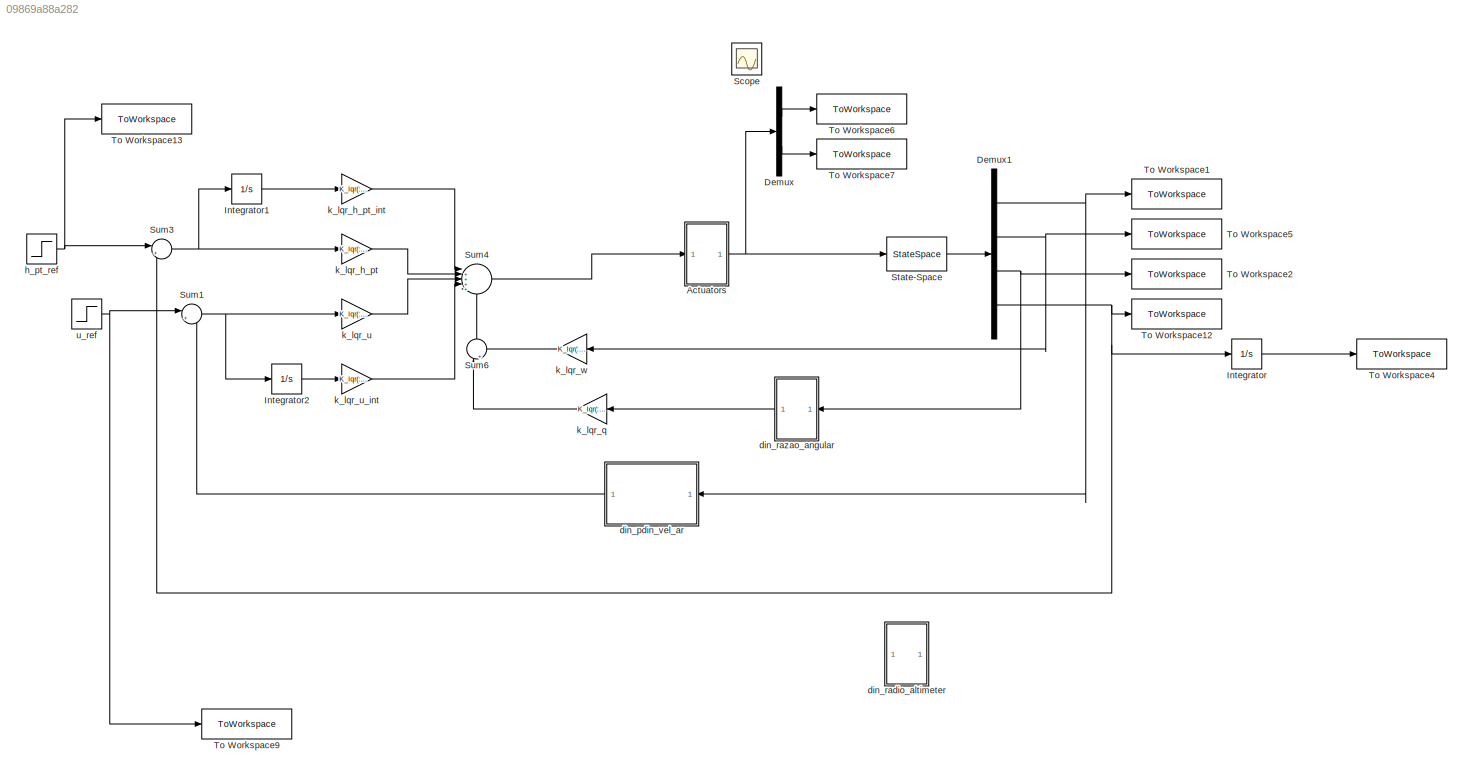
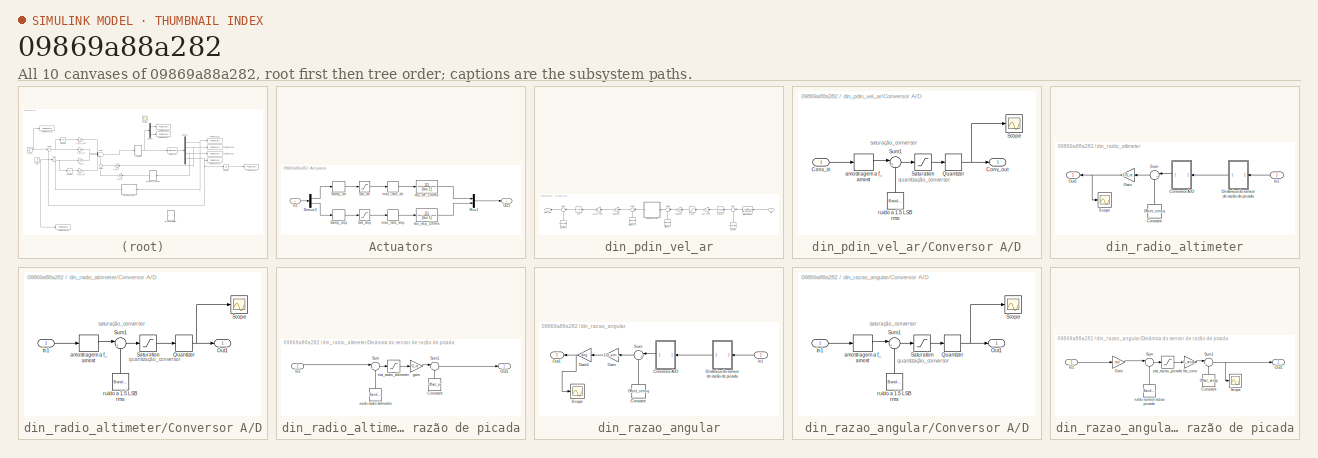
[diagram: thumbnail index - all 10 canvases of the model, root first then tree order]
MODEL slx_09869a88a282
KIND model
CONFIG AbsTol = auto
CONFIG EnableMultiTasking = off
CONFIG FixedStep = auto
CONFIG MaxStep = auto
CONFIG MinStep = auto
CONFIG RelTol = 1e-3
CONFIG SampleTimeConstraint = Unconstrained
CONFIG SolverName = VariableStepAuto
CONFIG StartTime = 0.0
CONFIG StopTime = 100
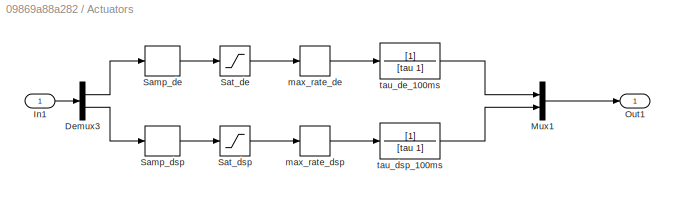
BLOCK [SubSystem] Actuators
  Ports = [1, 1]
  RequestExecContextInheritance = off
BLOCK [RateLimiter] Actuators/ max_rate_de
  FallingSlewLimit = -vel_max_at*deg
  RisingSlewLimit = vel_max_at*deg
  SampleTimeMode = inherited
BLOCK [RateLimiter] Actuators/ max_rate_dsp
  FallingSlewLimit = -vel_max_at*deg
  RisingSlewLimit = vel_max_at*deg
  SampleTimeMode = inherited
BLOCK [Demux] Actuators/Demux3
  Outputs = 2
  Ports = [1, 2]
BLOCK [Inport] Actuators/In1
BLOCK [Mux] Actuators/Mux1
  DisplayOption = bar
  Inputs = 2
  Ports = [2, 1]
BLOCK [Outport] Actuators/Out1
BLOCK [ZeroOrderHold] Actuators/Samp_de
  SampleTime = 1/f_amost
BLOCK [ZeroOrderHold] Actuators/Samp_dsp
  SampleTime = 1/f_amost
BLOCK [Saturate] Actuators/Sat_de
  LowerLimit = max_deflec.demin
  UpperLimit = max_deflec.demax
BLOCK [Saturate] Actuators/Sat_dsp
  LowerLimit = 0
  UpperLimit = max_deflec.spmax
BLOCK [TransferFcn] Actuators/tau_de_100ms
  Denominator = [tau 1]
BLOCK [TransferFcn] Actuators/tau_dsp_100ms
  Denominator = [tau 1]
BLOCK [Demux] Demux
  Outputs = 2
  Ports = [1, 2]
BLOCK [Demux] Demux1
  Ports = [1, 4]
BLOCK [Integrator] Integrator
  Ports = [1, 1]
BLOCK [Integrator] Integrator1
  Ports = [1, 1]
BLOCK [Integrator] Integrator2
  Ports = [1, 1]
BLOCK [Scope] Scope
  Floating = off
  IOType = viewer
  NumInputPorts = 1
  Ports = []
  ScopeSpecificationString = Simulink.scopes.TimeScopeBlockCfg('CurrentConfiguration', extmgr.ConfigurationSet(extmgr.Configuration('Core','General UI',true),extmgr.Configuration('Core','Source UI',true),extmgr.Configuration('Sources','WiredSimulink',true),extmgr.Configuration('Visuals','Time Domain',true,'SerializedDisplays',{struct('MinYLimReal','-0.44858','MaxYLimReal','2.42899','YLabelReal','','MinYLimMag','0.00000','MaxY...<+1359ch>
BLOCK [StateSpace] State-Space
  A = a_h_pt
  B = b_h_pt
  C = c_h_pt
  D = d_h_pt
  InitialCondition = x0
  Ports = [1, 1]
BLOCK [Sum] Sum1
  Inputs = |+-
  Ports = [2, 1]
BLOCK [Sum] Sum3
  Inputs = |+-
  Ports = [2, 1]
BLOCK [Sum] Sum4
  Inputs = |++++-
  Ports = [5, 1]
BLOCK [Sum] Sum6
  Inputs = |++
  NameLocation = right
  Ports = [2, 1]
BLOCK [ToWorkspace] To Workspace1
  FixptAsFi = on
  MaxDataPoints = inf
  Ports = [1]
  SampleTime = -1
  VariableName = u
BLOCK [ToWorkspace] To Workspace12
  FixptAsFi = on
  MaxDataPoints = inf
  Ports = [1]
  SampleTime = -1
  VariableName = h_pt
BLOCK [ToWorkspace] To Workspace13
  FixptAsFi = on
  MaxDataPoints = inf
  Ports = [1]
  SampleTime = -1
  VariableName = h_pt_ref
BLOCK [ToWorkspace] To Workspace2
  FixptAsFi = on
  MaxDataPoints = inf
  Ports = [1]
  SampleTime = -1
  VariableName = q
BLOCK [ToWorkspace] To Workspace4
  FixptAsFi = on
  MaxDataPoints = inf
  Ports = [1]
  SampleTime = -1
  VariableName = h
BLOCK [ToWorkspace] To Workspace5
  FixptAsFi = on
  MaxDataPoints = inf
  Ports = [1]
  SampleTime = -1
  VariableName = w
BLOCK [ToWorkspace] To Workspace6
  FixptAsFi = on
  MaxDataPoints = inf
  Ports = [1]
  SampleTime = -1
  SaveFormat = Structure With Time
  VariableName = de
BLOCK [ToWorkspace] To Workspace7
  FixptAsFi = on
  MaxDataPoints = inf
  Ports = [1]
  SampleTime = -1
  SaveFormat = Structure With Time
  VariableName = dsp
BLOCK [ToWorkspace] To Workspace9
  FixptAsFi = on
  MaxDataPoints = inf
  Ports = [1]
  SampleTime = -1
  VariableName = u_ref
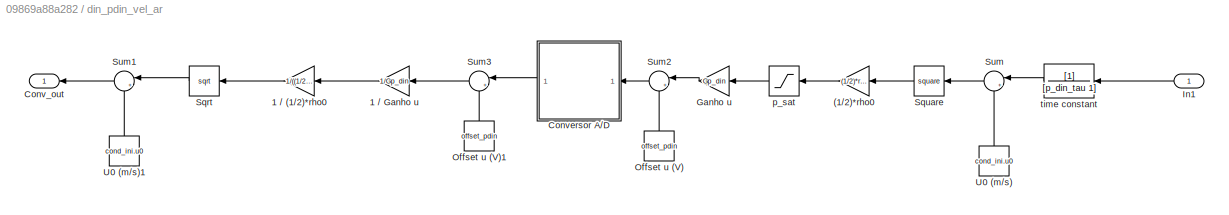
BLOCK [SubSystem] din_pdin_vel_ar
  NameLocation = top
  Ports = [1, 1]
  RequestExecContextInheritance = off
BLOCK [TransferFcn] din_pdin_vel_ar/ time constant
  Denominator = [p_din_tau 1]
  NameLocation = top
BLOCK [Gain] din_pdin_vel_ar/(1//2)*rho0
  Gain = (1/2)*rho0
  NameLocation = top
BLOCK [Gain] din_pdin_vel_ar/1 // (1//2)*rho0
  Gain = 1/((1/2)*rho0)
  NameLocation = top
BLOCK [Gain] din_pdin_vel_ar/1 // Ganho u
  Gain = 1/Gp_din
  NameLocation = top
BLOCK [Outport] din_pdin_vel_ar/Conv_out
  NameLocation = top
BLOCK [SubSystem] din_pdin_vel_ar/Conversor A//D
  NameLocation = top
  Ports = [1, 1]
  RequestExecContextInheritance = off
BLOCK [Inport] din_pdin_vel_ar/Conversor A//D/Conv_in
BLOCK [Outport] din_pdin_vel_ar/Conversor A//D/Conv_out
BLOCK [Quantizer] din_pdin_vel_ar/Conversor A//D/Quantizer
  QuantizationInterval = fat_quant
BLOCK [Saturate] din_pdin_vel_ar/Conversor A//D/Saturation
  LowerLimit = conv_min
  UpperLimit = conv_max
BLOCK [Scope] din_pdin_vel_ar/Conversor A//D/Scope
  Floating = off
  NumInputPorts = 1
  Ports = [1]
  ScopeSpecificationString = Simulink.scopes.TimeScopeBlockCfg('CurrentConfiguration', extmgr.ConfigurationSet(extmgr.Configuration('Core','General UI',true),extmgr.Configuration('Core','Source UI',true),extmgr.Configuration('Sources','WiredSimulink',true,'DataLoggingVariableName','ScopeData4'),extmgr.Configuration('Visuals','Time Domain',true),extmgr.Configuration('Tools','Plot Navigation',true),extmgr.Configuration('Tools',...<+40ch>  <repeated x3 — deduplicated; at blocks: Scope>
BLOCK [Sum] din_pdin_vel_ar/Conversor A//D/Sum1
  Inputs = |++
  Ports = [2, 1]
BLOCK [ZeroOrderHold] din_pdin_vel_ar/Conversor A//D/amostragem a f_amost
  SampleTime = 1/f_amost
BLOCK [Reference] din_pdin_vel_ar/Conversor A//D/ruído a 1.5 LSB rms  REF=simulink/Sources/Band-Limited
White Noise
  NameLocation = right
  Ports = [0, 1]
  SourceBlock = simulink/Sources/Band-Limited\nWhite Noise
  SourceProductBaseCode = SL
  SourceType = Band-Limited White Noise.
BLOCK [Gain] din_pdin_vel_ar/Ganho u
  Gain = Gp_din
  NameLocation = top
BLOCK [Inport] din_pdin_vel_ar/In1
  NameLocation = top
BLOCK [Constant] din_pdin_vel_ar/Offset u (V)
  NameLocation = right
  Value = offset_pdin
BLOCK [Constant] din_pdin_vel_ar/Offset u (V)1
  NameLocation = right
  Value = offset_pdin
BLOCK [Sqrt] din_pdin_vel_ar/Sqrt
  NameLocation = top
BLOCK [Math] din_pdin_vel_ar/Square
  NameLocation = top
  Operator = square
  Ports = [1, 1]
  SignedPower = on
BLOCK [Sum] din_pdin_vel_ar/Sum
  Inputs = |++
  NameLocation = top
  Ports = [2, 1]
BLOCK [Sum] din_pdin_vel_ar/Sum1
  Inputs = |+-
  NameLocation = top
  Ports = [2, 1]
BLOCK [Sum] din_pdin_vel_ar/Sum2
  Inputs = |++
  NameLocation = top
  Ports = [2, 1]
BLOCK [Sum] din_pdin_vel_ar/Sum3
  Inputs = |+-
  NameLocation = top
  Ports = [2, 1]
BLOCK [Constant] din_pdin_vel_ar/U0 (m//s)
  NameLocation = right
  Value = cond_ini.u0
BLOCK [Constant] din_pdin_vel_ar/U0 (m//s)1
  NameLocation = right
  Value = cond_ini.u0
BLOCK [Saturate] din_pdin_vel_ar/p_sat
  LowerLimit = pdin_min
  NameLocation = top
  UpperLimit = pdin_max
BLOCK [SubSystem] din_radio_altimeter
  Ports = [1, 1]
  RequestExecContextInheritance = off
BLOCK [Constant] din_radio_altimeter/Constant
  NameLocation = right
  Value = Offset_sensq
BLOCK [SubSystem] din_radio_altimeter/Conversor A//D
  NameLocation = top
  Ports = [1, 1]
  RequestExecContextInheritance = off
BLOCK [Inport] din_radio_altimeter/Conversor A//D/In1
BLOCK [Outport] din_radio_altimeter/Conversor A//D/Out1
BLOCK [Quantizer] din_radio_altimeter/Conversor A//D/Quantizer
  QuantizationInterval = fat_quant
BLOCK [Saturate] din_radio_altimeter/Conversor A//D/Saturation
  LowerLimit = conv_min
  UpperLimit = conv_max
BLOCK [Scope] din_radio_altimeter/Conversor A//D/Scope
  Floating = off
  NumInputPorts = 1
  Ports = [1]
BLOCK [Sum] din_radio_altimeter/Conversor A//D/Sum1
  Inputs = |++
  Ports = [2, 1]
BLOCK [ZeroOrderHold] din_radio_altimeter/Conversor A//D/amostragem a f_amost
  SampleTime = 1/f_amost
BLOCK [Reference] din_radio_altimeter/Conversor A//D/ruído a 1.5 LSB rms  REF=simulink/Sources/Band-Limited
White Noise
  NameLocation = right
  Ports = [0, 1]
  SourceBlock = simulink/Sources/Band-Limited\nWhite Noise
  SourceProductBaseCode = SL
  SourceType = Band-Limited White Noise.
BLOCK [SubSystem] din_radio_altimeter/Dinâmica do sensor de razão de picada
  Ports = [1, 1]
  RequestExecContextInheritance = off
BLOCK [Constant] din_radio_altimeter/Dinâmica do sensor de razão de picada/Constant
  NameLocation = right
  Value = Offset_ra
BLOCK [Inport] din_radio_altimeter/Dinâmica do sensor de razão de picada/In1
BLOCK [Outport] din_radio_altimeter/Dinâmica do sensor de razão de picada/Out1
BLOCK [Sum] din_radio_altimeter/Dinâmica do sensor de razão de picada/Sum
  Inputs = |++
  Ports = [2, 1]
BLOCK [Sum] din_radio_altimeter/Dinâmica do sensor de razão de picada/Sum1
  Inputs = |++
  Ports = [2, 1]
BLOCK [Gain] din_radio_altimeter/Dinâmica do sensor de razão de picada/gain
  Gain = G_ra
BLOCK [Reference] din_radio_altimeter/Dinâmica do sensor de razão de picada/ruido radio altimetro  REF=simulink/Sources/Band-Limited
White Noise
  NameLocation = right
  Ports = [0, 1]
  SourceBlock = simulink/Sources/Band-Limited\nWhite Noise
  SourceProductBaseCode = SL
  SourceType = Band-Limited White Noise.
BLOCK [Saturate] din_radio_altimeter/Dinâmica do sensor de razão de picada/sat_radio_altimeter
  LowerLimit = h_ra_min
  NameLocation = top
  UpperLimit = h_ra_max
BLOCK [Gain] din_radio_altimeter/Gain
  Gain = 1/G_ra
  NameLocation = top
BLOCK [Inport] din_radio_altimeter/In1
  NameLocation = top
BLOCK [Outport] din_radio_altimeter/Out1
BLOCK [Scope] din_radio_altimeter/Scope
  Floating = off
  NumInputPorts = 1
  Ports = [1]
  ScopeSpecificationString = Simulink.scopes.TimeScopeBlockCfg('CurrentConfiguration', extmgr.ConfigurationSet(extmgr.Configuration('Core','General UI',true),extmgr.Configuration('Core','Source UI',true),extmgr.Configuration('Sources','WiredSimulink',true,'DataLoggingVariableName','ScopeData5'),extmgr.Configuration('Visuals','Time Domain',true,'SerializedDisplays',{struct('MinYLimReal','-76.25116','MaxYLimReal','-75.73956','Y...<+1371ch>
BLOCK [Sum] din_radio_altimeter/Sum
  Inputs = |+-
  NameLocation = top
  Ports = [2, 1]
BLOCK [SubSystem] din_razao_angular
  Ports = [1, 1]
  RequestExecContextInheritance = off
BLOCK [Constant] din_razao_angular/Constant
  NameLocation = right
  Value = Offset_sensq
BLOCK [SubSystem] din_razao_angular/Conversor A//D
  NameLocation = top
  Ports = [1, 1]
  RequestExecContextInheritance = off
BLOCK [Inport] din_razao_angular/Conversor A//D/In1
BLOCK [Outport] din_razao_angular/Conversor A//D/Out1
BLOCK [Quantizer] din_razao_angular/Conversor A//D/Quantizer
  QuantizationInterval = fat_quant
BLOCK [Saturate] din_razao_angular/Conversor A//D/Saturation
  LowerLimit = conv_min
  UpperLimit = conv_max
BLOCK [Scope] din_razao_angular/Conversor A//D/Scope
  Floating = off
  NumInputPorts = 1
  Ports = [1]
BLOCK [Sum] din_razao_angular/Conversor A//D/Sum1
  Inputs = |++
  Ports = [2, 1]
BLOCK [ZeroOrderHold] din_razao_angular/Conversor A//D/amostragem a f_amost
  SampleTime = 1/f_amost
BLOCK [Reference] din_razao_angular/Conversor A//D/ruído a 1.5 LSB rms  REF=simulink/Sources/Band-Limited
White Noise
  NameLocation = right
  Ports = [0, 1]
  SourceBlock = simulink/Sources/Band-Limited\nWhite Noise
  SourceProductBaseCode = SL
  SourceType = Band-Limited White Noise.
BLOCK [SubSystem] din_razao_angular/Dinâmica do sensor de razão de picada
  Ports = [1, 1]
  RequestExecContextInheritance = off
BLOCK [Constant] din_razao_angular/Dinâmica do sensor de razão de picada/Constant
  NameLocation = right
  Value = Offset_sensq
BLOCK [Gain] din_razao_angular/Dinâmica do sensor de razão de picada/Gain
  Gain = rad
  NameLocation = top
BLOCK [Inport] din_razao_angular/Dinâmica do sensor de razão de picada/In1
BLOCK [Outport] din_razao_angular/Dinâmica do sensor de razão de picada/Out1
BLOCK [Scope] din_razao_angular/Dinâmica do sensor de razão de picada/Scope
  Floating = off
  NumInputPorts = 1
  Ports = [1]
  ScopeSpecificationString = Simulink.scopes.TimeScopeBlockCfg('CurrentConfiguration', extmgr.ConfigurationSet(extmgr.Configuration('Core','General UI',true),extmgr.Configuration('Core','Source UI',true),extmgr.Configuration('Sources','WiredSimulink',true,'DataLoggingVariableName','ScopeData3'),extmgr.Configuration('Visuals','Time Domain',true),extmgr.Configuration('Tools','Plot Navigation',true),extmgr.Configuration('Tools',...<+40ch>
BLOCK [Sum] din_razao_angular/Dinâmica do sensor de razão de picada/Sum
  Inputs = |++
  Ports = [2, 1]
BLOCK [Sum] din_razao_angular/Dinâmica do sensor de razão de picada/Sum1
  Inputs = |++
  Ports = [2, 1]
BLOCK [Gain] din_razao_angular/Dinâmica do sensor de razão de picada/fat_conv
  Gain = G_sensq
BLOCK [Reference] din_razao_angular/Dinâmica do sensor de razão de picada/ruído sensor razao picada  REF=simulink/Sources/Band-Limited
White Noise
  NameLocation = right
  Ports = [0, 1]
  SourceBlock = simulink/Sources/Band-Limited\nWhite Noise
  SourceProductBaseCode = SL
  SourceType = Band-Limited White Noise.
BLOCK [Saturate] din_razao_angular/Dinâmica do sensor de razão de picada/sat_razao_picada
  LowerLimit = q_min_sensq
  NameLocation = top
  UpperLimit = q_max_sensq
BLOCK [Gain] din_razao_angular/Gain
  Gain = 1/G_sensq
  NameLocation = top
BLOCK [Gain] din_razao_angular/Gain1
  Gain = deg
  NameLocation = top
BLOCK [Inport] din_razao_angular/In1
  NameLocation = top
BLOCK [Outport] din_razao_angular/Out1
BLOCK [Scope] din_razao_angular/Scope
  Floating = off
  NumInputPorts = 1
  Ports = [1]
  ScopeSpecificationString = Simulink.scopes.TimeScopeBlockCfg('CurrentConfiguration', extmgr.ConfigurationSet(extmgr.Configuration('Core','General UI',true),extmgr.Configuration('Core','Source UI',true),extmgr.Configuration('Sources','WiredSimulink',true,'DataLoggingVariableName','ScopeData5'),extmgr.Configuration('Visuals','Time Domain',true),extmgr.Configuration('Tools','Plot Navigation',true),extmgr.Configuration('Tools',...<+40ch>
BLOCK [Sum] din_razao_angular/Sum
  Inputs = |+-
  NameLocation = top
  Ports = [2, 1]
BLOCK [Step] h_pt_ref
  After = h_pt_ref
  SampleTime = 0
  Time = 10
  VectorParams1D = off
BLOCK [Gain] k_lqr_h_pt
  Gain = K_lqr(:,4)
  Multiplication = Matrix(K*u)
BLOCK [Gain] k_lqr_h_pt_int
  Gain = K_lqr(:,6)
  Multiplication = Matrix(K*u)
BLOCK [Gain] k_lqr_q
  Gain = K_lqr(:,3)
  Multiplication = Matrix(K*u)
  NameLocation = top
BLOCK [Gain] k_lqr_u
  Gain = K_lqr(:,1)
  Multiplication = Matrix(K*u)
BLOCK [Gain] k_lqr_u_int
  Gain = K_lqr(:,5)
  Multiplication = Matrix(K*u)
BLOCK [Gain] k_lqr_w
  Gain = K_lqr(:,2)
  Multiplication = Matrix(K*u)
  NameLocation = top
BLOCK [Step] u_ref
  After = u_ref
  SampleTime = 0
  Time = 50
  VectorParams1D = off
ANNOTATION din_pdin_vel_ar/Conversor A//D: quantização_conversor
ANNOTATION din_pdin_vel_ar/Conversor A//D: saturação_conversor
ANNOTATION din_radio_altimeter/Conversor A//D: quantização_conversor
ANNOTATION din_radio_altimeter/Conversor A//D: saturação_conversor
ANNOTATION din_razao_angular/Conversor A//D: quantização_conversor
ANNOTATION din_razao_angular/Conversor A//D: saturação_conversor
LINE Actuators/ max_rate_de:1 -> Actuators/tau_de_100ms:1
LINE Actuators/ max_rate_dsp:1 -> Actuators/tau_dsp_100ms:1
LINE Actuators/Demux3:1 -> Actuators/Samp_de:1
LINE Actuators/Demux3:2 -> Actuators/Samp_dsp:1
LINE Actuators/In1:1 -> Actuators/Demux3:1
LINE Actuators/Mux1:1 -> Actuators/Out1:1
LINE Actuators/Samp_de:1 -> Actuators/Sat_de:1
LINE Actuators/Samp_dsp:1 -> Actuators/Sat_dsp:1
LINE Actuators/Sat_de:1 -> Actuators/ max_rate_de:1
LINE Actuators/Sat_dsp:1 -> Actuators/ max_rate_dsp:1
LINE Actuators/tau_de_100ms:1 -> Actuators/Mux1:1
LINE Actuators/tau_dsp_100ms:1 -> Actuators/Mux1:2
NET Actuators:1 -> Demux:1, State-Space:1
NET Demux1:1 -> To Workspace1:1, din_pdin_vel_ar:1
NET Demux1:2 -> To Workspace5:1, k_lqr_w:1
NET Demux1:3 -> To Workspace2:1, din_razao_angular:1
NET Demux1:4 -> Integrator:1, Sum3:2, To Workspace12:1
LINE Demux:1 -> To Workspace6:1
LINE Demux:2 -> To Workspace7:1
LINE Integrator1:1 -> k_lqr_h_pt_int:1
LINE Integrator2:1 -> k_lqr_u_int:1
LINE Integrator:1 -> To Workspace4:1
LINE State-Space:1 -> Demux1:1
NET Sum1:1 -> Integrator2:1, k_lqr_u:1
NET Sum3:1 -> Integrator1:1, k_lqr_h_pt:1
LINE Sum4:1 -> Actuators:1
LINE Sum6:1 -> Sum4:5
LINE din_pdin_vel_ar/ time constant:1 -> din_pdin_vel_ar/Sum:1
LINE din_pdin_vel_ar/(1//2)*rho0:1 -> din_pdin_vel_ar/p_sat:1
LINE din_pdin_vel_ar/1 // (1//2)*rho0:1 -> din_pdin_vel_ar/Sqrt:1
LINE din_pdin_vel_ar/1 // Ganho u:1 -> din_pdin_vel_ar/1 // (1//2)*rho0:1
LINE din_pdin_vel_ar/Conversor A//D/Conv_in:1 -> din_pdin_vel_ar/Conversor A//D/amostragem a f_amost:1
NET din_pdin_vel_ar/Conversor A//D/Quantizer:1 -> din_pdin_vel_ar/Conversor A//D/Conv_out:1, din_pdin_vel_ar/Conversor A//D/Scope:1
LINE din_pdin_vel_ar/Conversor A//D/Saturation:1 -> din_pdin_vel_ar/Conversor A//D/Quantizer:1
LINE din_pdin_vel_ar/Conversor A//D/Sum1:1 -> din_pdin_vel_ar/Conversor A//D/Saturation:1
LINE din_pdin_vel_ar/Conversor A//D/amostragem a f_amost:1 -> din_pdin_vel_ar/Conversor A//D/Sum1:1
LINE din_pdin_vel_ar/Conversor A//D/ruído a 1.5 LSB rms:1 -> din_pdin_vel_ar/Conversor A//D/Sum1:2
LINE din_pdin_vel_ar/Conversor A//D:1 -> din_pdin_vel_ar/Sum3:1
LINE din_pdin_vel_ar/Ganho u:1 -> din_pdin_vel_ar/Sum2:1
LINE din_pdin_vel_ar/In1:1 -> din_pdin_vel_ar/ time constant:1
LINE din_pdin_vel_ar/Offset u (V)1:1 -> din_pdin_vel_ar/Sum3:2
LINE din_pdin_vel_ar/Offset u (V):1 -> din_pdin_vel_ar/Sum2:2
LINE din_pdin_vel_ar/Sqrt:1 -> din_pdin_vel_ar/Sum1:1
LINE din_pdin_vel_ar/Square:1 -> din_pdin_vel_ar/(1//2)*rho0:1
LINE din_pdin_vel_ar/Sum1:1 -> din_pdin_vel_ar/Conv_out:1
LINE din_pdin_vel_ar/Sum2:1 -> din_pdin_vel_ar/Conversor A//D:1
LINE din_pdin_vel_ar/Sum3:1 -> din_pdin_vel_ar/1 // Ganho u:1
LINE din_pdin_vel_ar/Sum:1 -> din_pdin_vel_ar/Square:1
LINE din_pdin_vel_ar/U0 (m//s)1:1 -> din_pdin_vel_ar/Sum1:2
LINE din_pdin_vel_ar/U0 (m//s):1 -> din_pdin_vel_ar/Sum:2
LINE din_pdin_vel_ar/p_sat:1 -> din_pdin_vel_ar/Ganho u:1
LINE din_pdin_vel_ar:1 -> Sum1:2
LINE din_radio_altimeter/Constant:1 -> din_radio_altimeter/Sum:2
LINE din_radio_altimeter/Conversor A//D/In1:1 -> din_radio_altimeter/Conversor A//D/amostragem a f_amost:1
NET din_radio_altimeter/Conversor A//D/Quantizer:1 -> din_radio_altimeter/Conversor A//D/Out1:1, din_radio_altimeter/Conversor A//D/Scope:1
LINE din_radio_altimeter/Conversor A//D/Saturation:1 -> din_radio_altimeter/Conversor A//D/Quantizer:1
LINE din_radio_altimeter/Conversor A//D/Sum1:1 -> din_radio_altimeter/Conversor A//D/Saturation:1
LINE din_radio_altimeter/Conversor A//D/amostragem a f_amost:1 -> din_radio_altimeter/Conversor A//D/Sum1:1
LINE din_radio_altimeter/Conversor A//D/ruído a 1.5 LSB rms:1 -> din_radio_altimeter/Conversor A//D/Sum1:2
LINE din_radio_altimeter/Conversor A//D:1 -> din_radio_altimeter/Sum:1
LINE din_radio_altimeter/Dinâmica do sensor de razão de picada/Constant:1 -> din_radio_altimeter/Dinâmica do sensor de razão de picada/Sum1:2
LINE din_radio_altimeter/Dinâmica do sensor de razão de picada/In1:1 -> din_radio_altimeter/Dinâmica do sensor de razão de picada/Sum:1
LINE din_radio_altimeter/Dinâmica do sensor de razão de picada/Sum1:1 -> din_radio_altimeter/Dinâmica do sensor de razão de picada/Out1:1
LINE din_radio_altimeter/Dinâmica do sensor de razão de picada/Sum:1 -> din_radio_altimeter/Dinâmica do sensor de razão de picada/sat_radio_altimeter:1
LINE din_radio_altimeter/Dinâmica do sensor de razão de picada/gain:1 -> din_radio_altimeter/Dinâmica do sensor de razão de picada/Sum1:1
LINE din_radio_altimeter/Dinâmica do sensor de razão de picada/ruido radio altimetro:1 -> din_radio_altimeter/Dinâmica do sensor de razão de picada/Sum:2
LINE din_radio_altimeter/Dinâmica do sensor de razão de picada/sat_radio_altimeter:1 -> din_radio_altimeter/Dinâmica do sensor de razão de picada/gain:1
LINE din_radio_altimeter/Dinâmica do sensor de razão de picada:1 -> din_radio_altimeter/Conversor A//D:1
NET din_radio_altimeter/Gain:1 -> din_radio_altimeter/Out1:1, din_radio_altimeter/Scope:1
LINE din_radio_altimeter/In1:1 -> din_radio_altimeter/Dinâmica do sensor de razão de picada:1
LINE din_radio_altimeter/Sum:1 -> din_radio_altimeter/Gain:1
LINE din_razao_angular/Constant:1 -> din_razao_angular/Sum:2
LINE din_razao_angular/Conversor A//D/In1:1 -> din_razao_angular/Conversor A//D/amostragem a f_amost:1
NET din_razao_angular/Conversor A//D/Quantizer:1 -> din_razao_angular/Conversor A//D/Out1:1, din_razao_angular/Conversor A//D/Scope:1
LINE din_razao_angular/Conversor A//D/Saturation:1 -> din_razao_angular/Conversor A//D/Quantizer:1
LINE din_razao_angular/Conversor A//D/Sum1:1 -> din_razao_angular/Conversor A//D/Saturation:1
LINE din_razao_angular/Conversor A//D/amostragem a f_amost:1 -> din_razao_angular/Conversor A//D/Sum1:1
LINE din_razao_angular/Conversor A//D/ruído a 1.5 LSB rms:1 -> din_razao_angular/Conversor A//D/Sum1:2
LINE din_razao_angular/Conversor A//D:1 -> din_razao_angular/Sum:1
LINE din_razao_angular/Dinâmica do sensor de razão de picada/Constant:1 -> din_razao_angular/Dinâmica do sensor de razão de picada/Sum1:2
LINE din_razao_angular/Dinâmica do sensor de razão de picada/Gain:1 -> din_razao_angular/Dinâmica do sensor de razão de picada/Sum:1
LINE din_razao_angular/Dinâmica do sensor de razão de picada/In1:1 -> din_razao_angular/Dinâmica do sensor de razão de picada/Gain:1
NET din_razao_angular/Dinâmica do sensor de razão de picada/Sum1:1 -> din_razao_angular/Dinâmica do sensor de razão de picada/Out1:1, din_razao_angular/Dinâmica do sensor de razão de picada/Scope:1
LINE din_razao_angular/Dinâmica do sensor de razão de picada/Sum:1 -> din_razao_angular/Dinâmica do sensor de razão de picada/sat_razao_picada:1
LINE din_razao_angular/Dinâmica do sensor de razão de picada/fat_conv:1 -> din_razao_angular/Dinâmica do sensor de razão de picada/Sum1:1
LINE din_razao_angular/Dinâmica do sensor de razão de picada/ruído sensor razao picada:1 -> din_razao_angular/Dinâmica do sensor de razão de picada/Sum:2
LINE din_razao_angular/Dinâmica do sensor de razão de picada/sat_razao_picada:1 -> din_razao_angular/Dinâmica do sensor de razão de picada/fat_conv:1
LINE din_razao_angular/Dinâmica do sensor de razão de picada:1 -> din_razao_angular/Conversor A//D:1
NET din_razao_angular/Gain1:1 -> din_razao_angular/Out1:1, din_razao_angular/Scope:1
LINE din_razao_angular/Gain:1 -> din_razao_angular/Gain1:1
LINE din_razao_angular/In1:1 -> din_razao_angular/Dinâmica do sensor de razão de picada:1
LINE din_razao_angular/Sum:1 -> din_razao_angular/Gain:1
LINE din_razao_angular:1 -> k_lqr_q:1
NET h_pt_ref:1 -> Sum3:1, To Workspace13:1
LINE k_lqr_h_pt:1 -> Sum4:2
LINE k_lqr_h_pt_int:1 -> Sum4:1
LINE k_lqr_q:1 -> Sum6:1
LINE k_lqr_u:1 -> Sum4:3
LINE k_lqr_u_int:1 -> Sum4:4
LINE k_lqr_w:1 -> Sum6:2
NET u_ref:1 -> Sum1:1, To Workspace9:1
note: NET lines group one-source signal fan-out (src -> all destinations, sorted); 1:1 wires keep LINE
